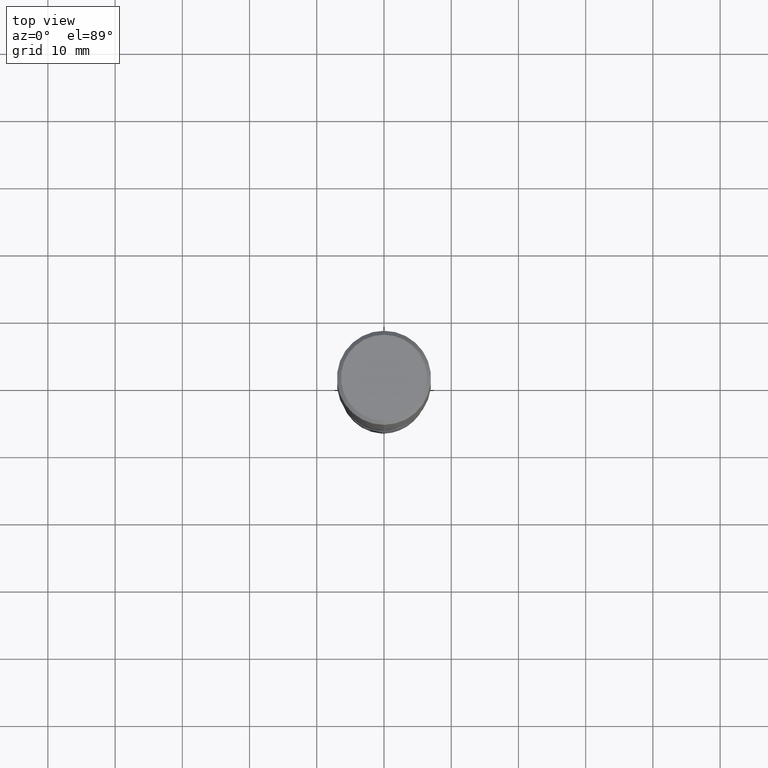
[diagram: clean part render]
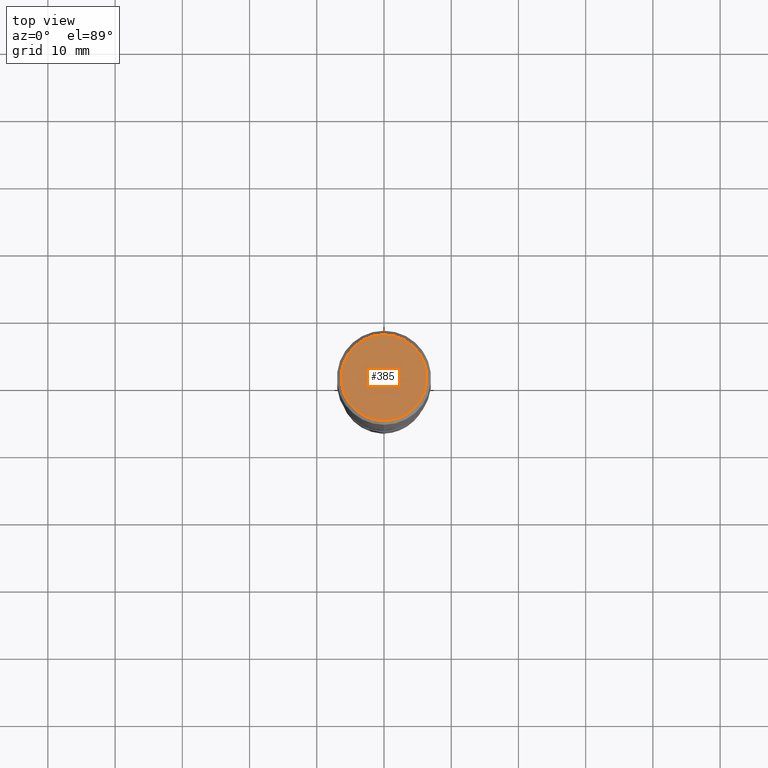
[diagram: same view with one face highlighted and labeled with its STEP entity id]
A machine part, top view. The second image highlights one B-rep face of the part: STEP entity #385.
In plain terms, the highlighted planar face has unit normal (-0, 0, 1).
Its self-contained STEP definition (entity closure, byte-faithful):
#385=ADVANCED_FACE('',(#886),#887,.T.);
#551=EDGE_CURVE('',#691,#703,#1065,.T.);
#603=EDGE_CURVE('',#703,#691,#1122,.T.);
#691=VERTEX_POINT('',#1219);
#703=VERTEX_POINT('',#1235);
#886=FACE_OUTER_BOUND('',#1763,.T.);
#887=PLANE('',#1764);
#1065=CIRCLE('',#3682,6.4);
#1122=CIRCLE('',#3933,6.4);
#1219=CARTESIAN_POINT('',(7.83748066446321E-016,-6.4,0.0));
#1235=CARTESIAN_POINT('',(0.0,6.4,0.0));
#1763=EDGE_LOOP('',(#5344,#5345));
#1764=AXIS2_PLACEMENT_3D('',#5346,#5347,#5348);
#3682=AXIS2_PLACEMENT_3D('',#5496,#5497,#5498);
#3933=AXIS2_PLACEMENT_3D('',#5563,#5564,#5565);
#5344=ORIENTED_EDGE('',*,*,#603,.F.);
#5345=ORIENTED_EDGE('',*,*,#551,.F.);
#5346=CARTESIAN_POINT('',(0.0,3.2,0.0));
#5347=DIRECTION('',(-0.0,0.0,1.0));
#5348=DIRECTION('',(0.0,-1.0,0.0));
#5496=CARTESIAN_POINT('',(0.0,0.0,0.0));
#5497=DIRECTION('',(0.0,0.0,-1.0));
#5498=DIRECTION('',(0.0,1.0,0.0));
#5563=CARTESIAN_POINT('',(0.0,0.0,0.0));
#5564=DIRECTION('',(0.0,0.0,-1.0));
#5565=DIRECTION('',(0.0,1.0,0.0));